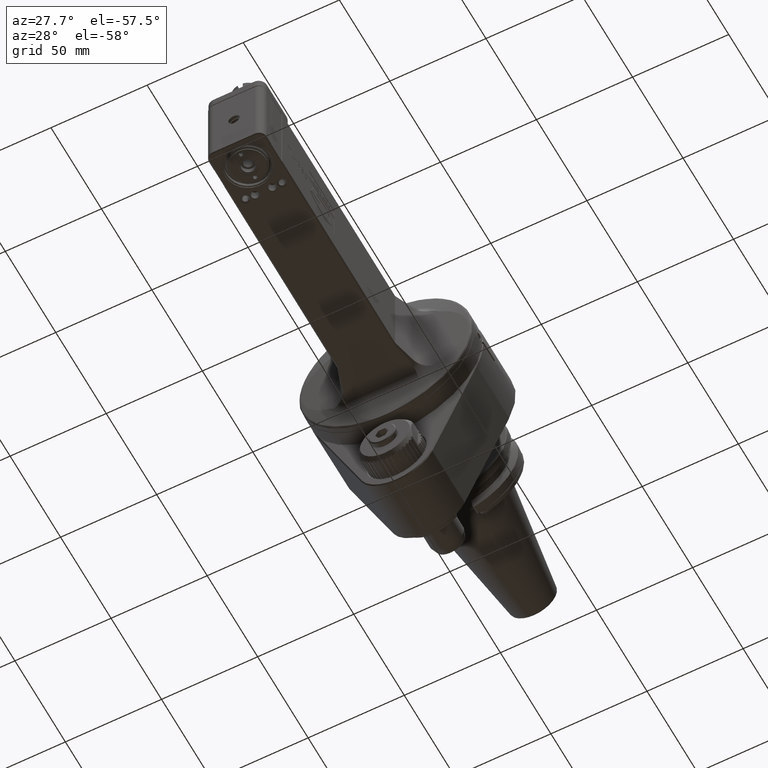
[diagram: clean part render]
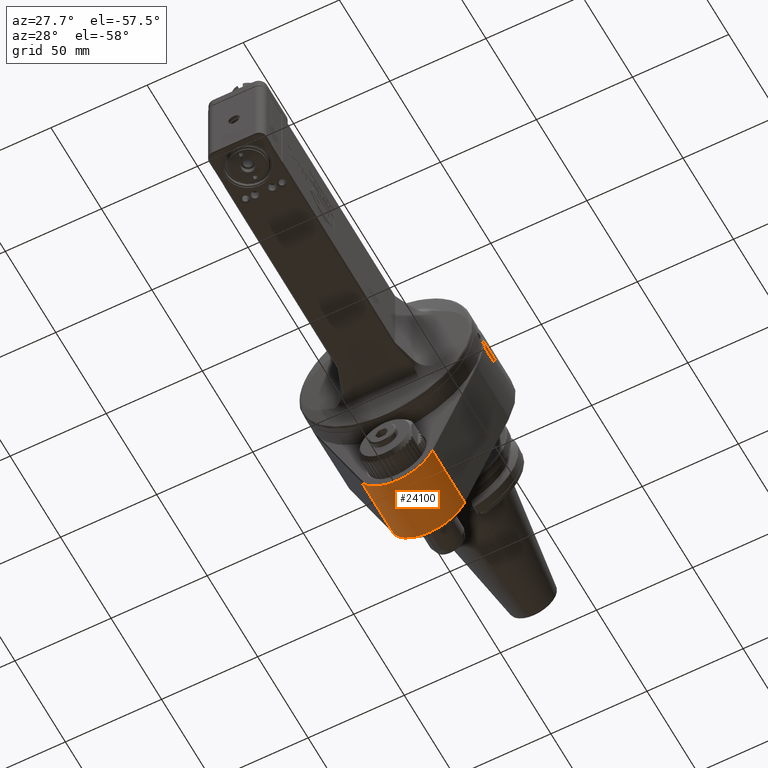
[diagram: same view with one face highlighted and labeled with its STEP entity id]
A machine part, auxiliary view. The second image highlights one B-rep face of the part: STEP entity #24100.
In plain terms, the highlighted cylindrical surface (partial cylindrical patch) has radius 20 mm, axis along (0, 1, 0).
Its self-contained STEP definition (entity closure, byte-faithful):
#1954=LINE('',#42015,#4083);
#1964=LINE('',#42126,#4093);
#4083=VECTOR('',#30746,31.99992477141);
#4093=VECTOR('',#30776,31.99992477058);
#5156=CYLINDRICAL_SURFACE('',#25988,20.);
#6160=FACE_OUTER_BOUND('',#7655,.T.);
#7655=EDGE_LOOP('',(#19048,#19049,#19050,#19051));
#8886=CIRCLE('',#25975,20.);
#8887=CIRCLE('',#25980,20.);
#10688=VERTEX_POINT('',#42004);
#10689=VERTEX_POINT('',#42008);
#10690=VERTEX_POINT('',#42014);
#10691=VERTEX_POINT('',#42021);
#13642=EDGE_CURVE('',#10688,#10689,#8886,.T.);
#13645=EDGE_CURVE('',#10690,#10689,#1954,.T.);
#13649=EDGE_CURVE('',#10690,#10691,#8887,.T.);
#13663=EDGE_CURVE('',#10691,#10688,#1964,.T.);
#19048=ORIENTED_EDGE('',*,*,#13642,.F.);
#19049=ORIENTED_EDGE('',*,*,#13663,.F.);
#19050=ORIENTED_EDGE('',*,*,#13649,.F.);
#19051=ORIENTED_EDGE('',*,*,#13645,.T.);
#24100=ADVANCED_FACE('',(#6160),#5156,.T.);
#25975=AXIS2_PLACEMENT_3D('',#42009,#30738,#30739);
#25980=AXIS2_PLACEMENT_3D('',#42022,#30754,#30755);
#25988=AXIS2_PLACEMENT_3D('',#42127,#30777,#30778);
#30738=DIRECTION('center_axis',(0.,1.,0.));
#30739=DIRECTION('ref_axis',(0.923076923076914,0.,-0.384615384615406));
#30746=DIRECTION('',(0.,1.,0.));
#30754=DIRECTION('center_axis',(0.,-1.,0.));
#30755=DIRECTION('ref_axis',(-0.923076923076914,0.,-0.384615384615406));
#30776=DIRECTION('',(0.,1.,0.));
#30777=DIRECTION('center_axis',(0.,1.,0.));
#30778=DIRECTION('ref_axis',(1.,0.,0.));
#42004=CARTESIAN_POINT('',(18.4615488916162,179.49984412637,-72.6922401409267));
#42008=CARTESIAN_POINT('',(-18.4614894691302,179.499906428888,-72.6922222828442));
#42009=CARTESIAN_POINT('Origin',(8.361619475092E-6,179.4996990719,-64.99993158676));
#42014=CARTESIAN_POINT('',(-18.4615321683794,147.500155873633,-72.6922401409281));
#42015=CARTESIAN_POINT('',(-18.46149540007,147.5000376143,-72.69222475407));
#42021=CARTESIAN_POINT('',(18.4615061899688,147.500093571229,-72.6922222896272));
#42022=CARTESIAN_POINT('Origin',(8.361619475092E-6,147.5003009281,-64.99993158676));
#42126=CARTESIAN_POINT('',(18.46151212093,147.5000376147,-72.69222476086));
#42127=CARTESIAN_POINT('Origin',(8.361619475092E-6,147.,-64.99993158676));